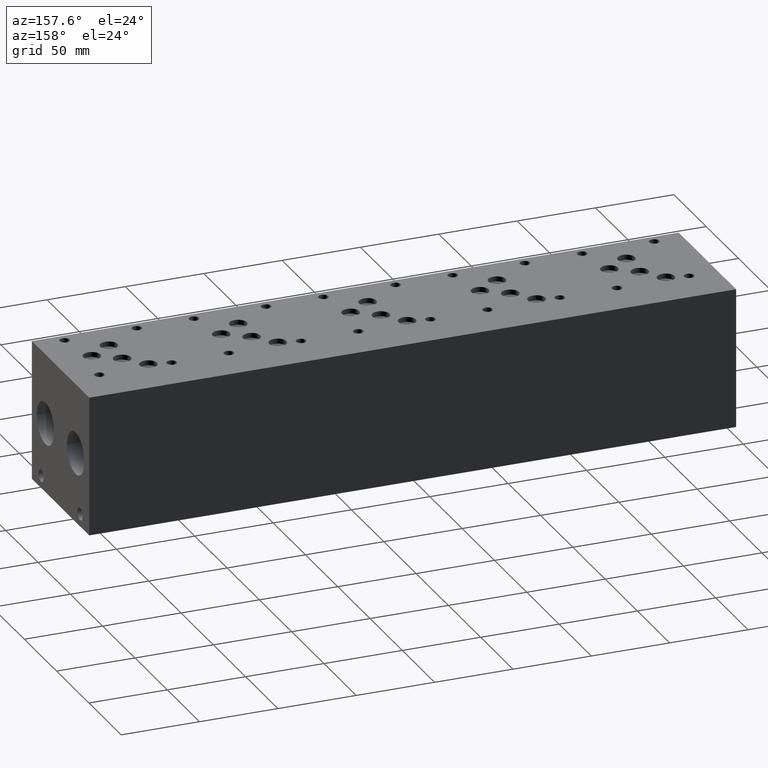
[diagram: clean part render]
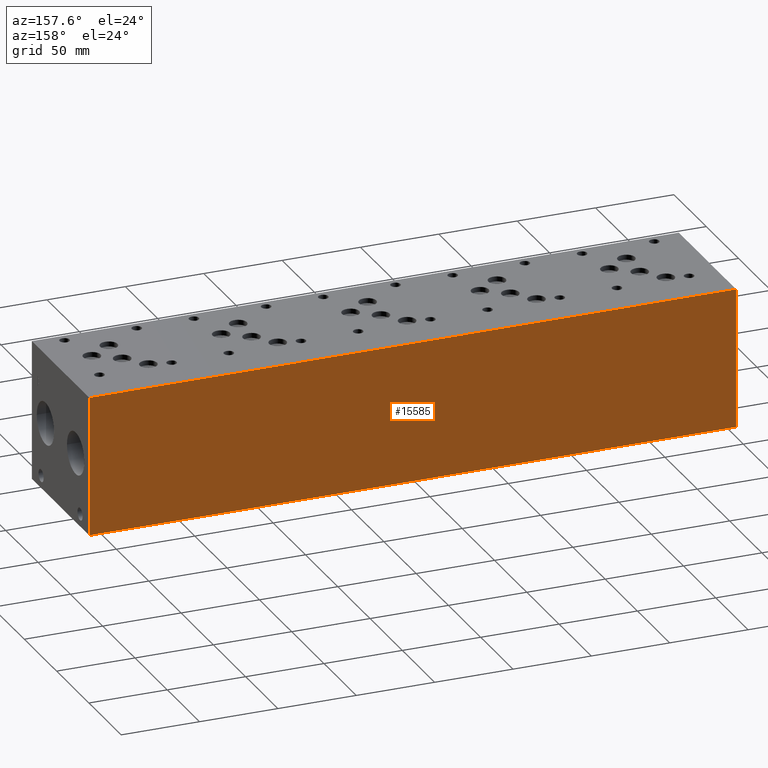
[diagram: same view with one face highlighted and labeled with its STEP entity id]
A machine part, auxiliary view. The second image highlights one B-rep face of the part: STEP entity #15585.
In plain terms, the highlighted planar face has unit normal (0, 1, 0).
Its self-contained STEP definition (entity closure, byte-faithful):
#2083=FACE_OUTER_BOUND('',#3004,.T.);
#3004=EDGE_LOOP('',(#13664,#13665,#13666,#13667));
#3106=LINE('',#20117,#4496);
#3168=LINE('',#20395,#4558);
#4437=LINE('',#26919,#5827);
#4438=LINE('',#26920,#5828);
#4496=VECTOR('',#16656,10.);
#4558=VECTOR('',#16772,10.);
#5827=VECTOR('',#19851,10.);
#5828=VECTOR('',#19852,10.);
#5878=VERTEX_POINT('',#20114);
#5879=VERTEX_POINT('',#20116);
#5937=VERTEX_POINT('',#20388);
#5940=VERTEX_POINT('',#20393);
#7404=EDGE_CURVE('',#5878,#5879,#3106,.T.);
#7490=EDGE_CURVE('',#5937,#5940,#3168,.T.);
#9474=EDGE_CURVE('',#5878,#5937,#4437,.T.);
#9475=EDGE_CURVE('',#5879,#5940,#4438,.T.);
#13664=ORIENTED_EDGE('',*,*,#9474,.T.);
#13665=ORIENTED_EDGE('',*,*,#7490,.T.);
#13666=ORIENTED_EDGE('',*,*,#9475,.F.);
#13667=ORIENTED_EDGE('',*,*,#7404,.F.);
#14206=PLANE('',#16554);
#15585=ADVANCED_FACE('',(#2083),#14206,.T.);
#16554=AXIS2_PLACEMENT_3D('',#26918,#19849,#19850);
#16656=DIRECTION('',(0.,0.,1.));
#16772=DIRECTION('',(0.,0.,1.));
#19849=DIRECTION('center_axis',(0.,1.,0.));
#19850=DIRECTION('ref_axis',(-1.,0.,0.));
#19851=DIRECTION('',(-1.,0.,0.));
#19852=DIRECTION('',(-1.,0.,0.));
#20114=CARTESIAN_POINT('',(412.75,88.9,0.));
#20116=CARTESIAN_POINT('',(412.75,88.9,88.9));
#20117=CARTESIAN_POINT('',(412.75,88.9,0.));
#20388=CARTESIAN_POINT('',(0.,88.9,0.));
#20393=CARTESIAN_POINT('',(0.,88.9,88.9));
#20395=CARTESIAN_POINT('',(0.,88.9,0.));
#26918=CARTESIAN_POINT('Origin',(412.75,88.9,0.));
#26919=CARTESIAN_POINT('',(412.75,88.9,0.));
#26920=CARTESIAN_POINT('',(412.75,88.9,88.9));